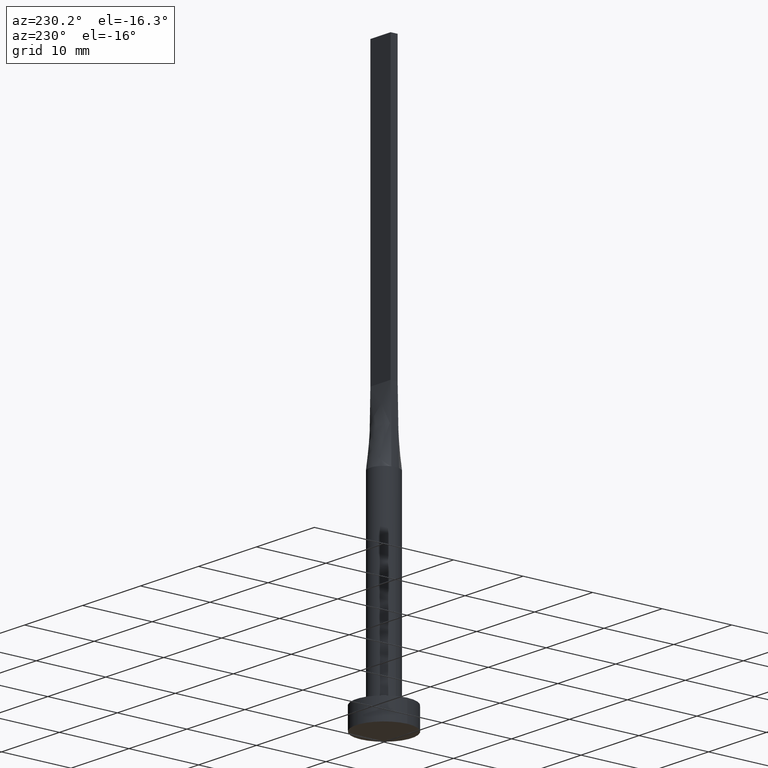
[diagram: clean part render]
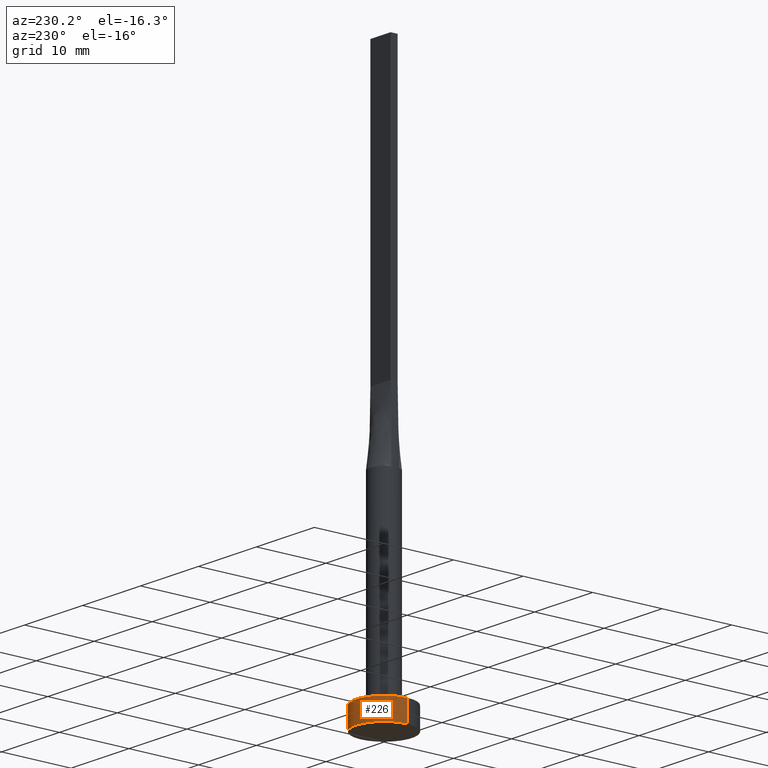
[diagram: same view with one face highlighted and labeled with its STEP entity id]
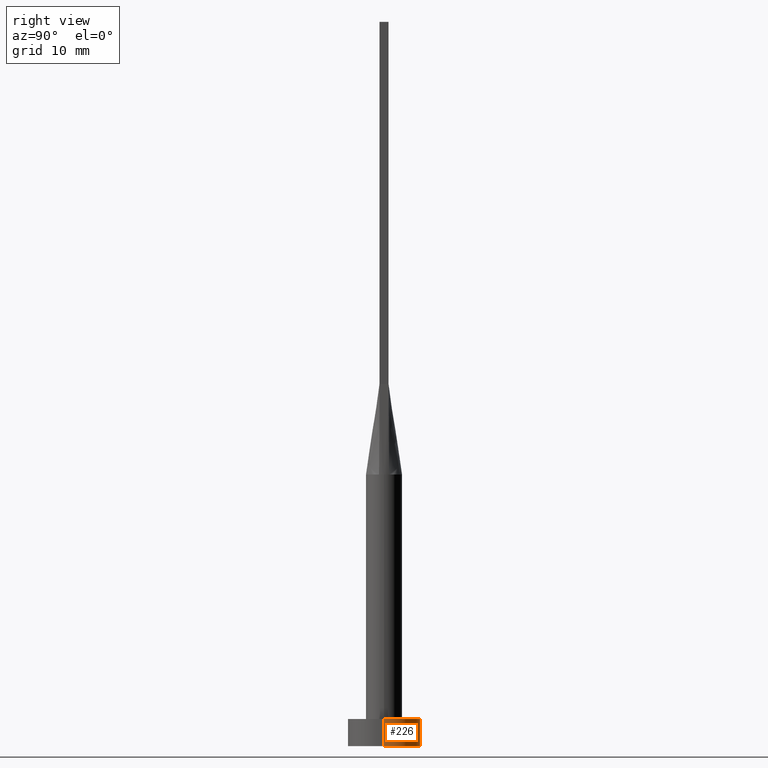
[diagram: same view with one face highlighted and labeled with its STEP entity id]
A machine part, auxiliary view. The second image highlights one B-rep face of the part: STEP entity #226.
A second angle (right view) of the same face is appended — the face is thin or edge-on in the first view.
In plain terms, the highlighted cylindrical surface (edge-blend (fillet) strip) has radius 4 mm, axis along (-0, -0, -1).
Its self-contained STEP definition (entity closure, byte-faithful):
#5 = LINE ( 'NONE', #97, #457 ) ;
#17 = ORIENTED_EDGE ( 'NONE', *, *, #469, .T. ) ;
#26 = AXIS2_PLACEMENT_3D ( 'NONE', #284, #281, #456 ) ;
#47 = ORIENTED_EDGE ( 'NONE', *, *, #301, .T. ) ;
#55 = CARTESIAN_POINT ( 'NONE',  ( 4.000000000000000000, 4.898587196589412829E-16, 0.000000000000000000 ) ) ;
#63 = DIRECTION ( 'NONE',  ( -0.000000000000000000, -0.000000000000000000, -1.000000000000000000 ) ) ;
#75 = EDGE_LOOP ( 'NONE', ( #407, #47, #17, #420 ) ) ;
#97 = CARTESIAN_POINT ( 'NONE',  ( -4.000000000000000000, 0.000000000000000000, 3.000000000000000000 ) ) ;
#105 = EDGE_CURVE ( 'NONE', #266, #505, #5, .T. ) ;
#169 = CARTESIAN_POINT ( 'NONE',  ( 4.000000000000000000, 4.898587196589412829E-16, 3.000000000000000000 ) ) ;
#207 = CARTESIAN_POINT ( 'NONE',  ( -4.000000000000000000, 0.000000000000000000, 3.000000000000000000 ) ) ;
#216 = CARTESIAN_POINT ( 'NONE',  ( 0.000000000000000000, 0.000000000000000000, 3.000000000000000000 ) ) ;
#218 = DIRECTION ( 'NONE',  ( 0.000000000000000000, 0.000000000000000000, 1.000000000000000000 ) ) ;
#226 = ADVANCED_FACE ( 'NONE', ( #547 ), #501, .T. ) ;
#233 = VERTEX_POINT ( 'NONE', #55 ) ;
#266 = VERTEX_POINT ( 'NONE', #207 ) ;
#271 = DIRECTION ( 'NONE',  ( 1.000000000000000000, 0.000000000000000000, 0.000000000000000000 ) ) ;
#281 = DIRECTION ( 'NONE',  ( -0.000000000000000000, -0.000000000000000000, -1.000000000000000000 ) ) ;
#284 = CARTESIAN_POINT ( 'NONE',  ( 0.000000000000000000, 0.000000000000000000, 3.000000000000000000 ) ) ;
#285 = AXIS2_PLACEMENT_3D ( 'NONE', #486, #218, #438 ) ;
#289 = VERTEX_POINT ( 'NONE', #169 ) ;
#300 = CARTESIAN_POINT ( 'NONE',  ( 4.000000000000000000, 4.898587196589412829E-16, 3.000000000000000000 ) ) ;
#301 = EDGE_CURVE ( 'NONE', #289, #233, #374, .T. ) ;
#328 = CIRCLE ( 'NONE', #285, 4.000000000000000000 ) ;
#374 = LINE ( 'NONE', #300, #543 ) ;
#407 = ORIENTED_EDGE ( 'NONE', *, *, #548, .F. ) ;
#420 = ORIENTED_EDGE ( 'NONE', *, *, #105, .F. ) ;
#423 = AXIS2_PLACEMENT_3D ( 'NONE', #216, #568, #271 ) ;
#438 = DIRECTION ( 'NONE',  ( 1.000000000000000000, 0.000000000000000000, 0.000000000000000000 ) ) ;
#441 = CARTESIAN_POINT ( 'NONE',  ( -4.000000000000000000, 0.000000000000000000, 0.000000000000000000 ) ) ;
#445 = CIRCLE ( 'NONE', #423, 4.000000000000000000 ) ;
#456 = DIRECTION ( 'NONE',  ( -1.000000000000000000, 0.000000000000000000, 0.000000000000000000 ) ) ;
#457 = VECTOR ( 'NONE', #491, 1000.000000000000000 ) ;
#469 = EDGE_CURVE ( 'NONE', #233, #505, #328, .T. ) ;
#486 = CARTESIAN_POINT ( 'NONE',  ( 0.000000000000000000, 0.000000000000000000, 0.000000000000000000 ) ) ;
#491 = DIRECTION ( 'NONE',  ( -0.000000000000000000, -0.000000000000000000, -1.000000000000000000 ) ) ;
#501 = CYLINDRICAL_SURFACE ( 'NONE', #26, 4.000000000000000000 ) ;
#505 = VERTEX_POINT ( 'NONE', #441 ) ;
#543 = VECTOR ( 'NONE', #63, 1000.000000000000000 ) ;
#547 = FACE_OUTER_BOUND ( 'NONE', #75, .T. ) ;
#548 = EDGE_CURVE ( 'NONE', #289, #266, #445, .T. ) ;
#568 = DIRECTION ( 'NONE',  ( 0.000000000000000000, 0.000000000000000000, 1.000000000000000000 ) ) ;